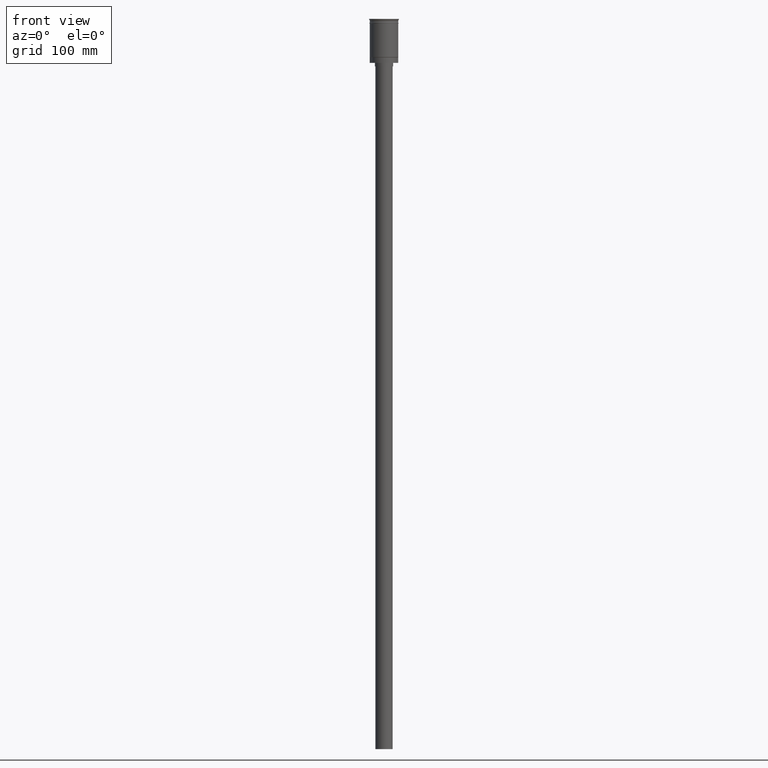
[diagram: clean part render]
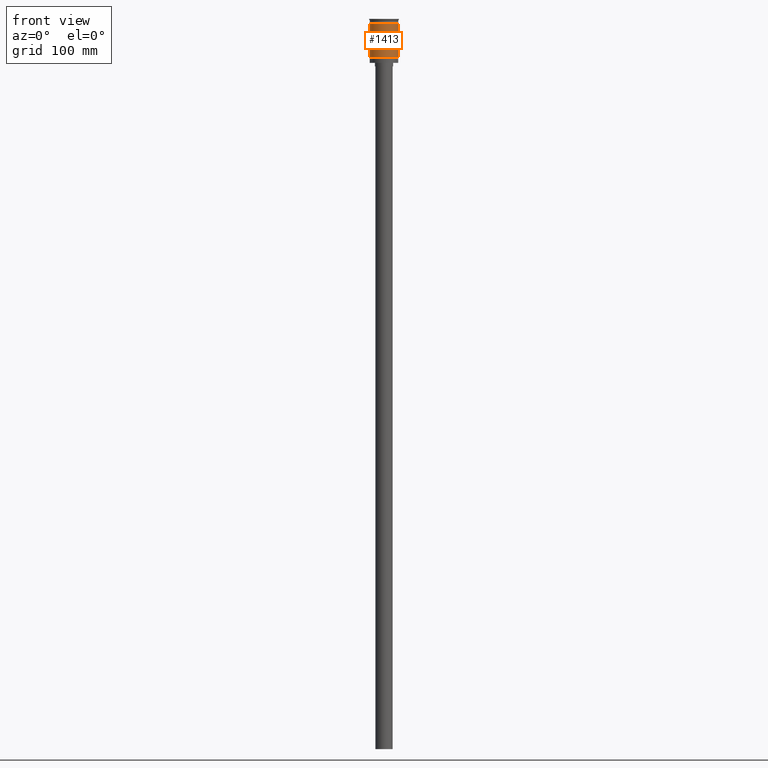
[diagram: same view with one face highlighted and labeled with its STEP entity id]
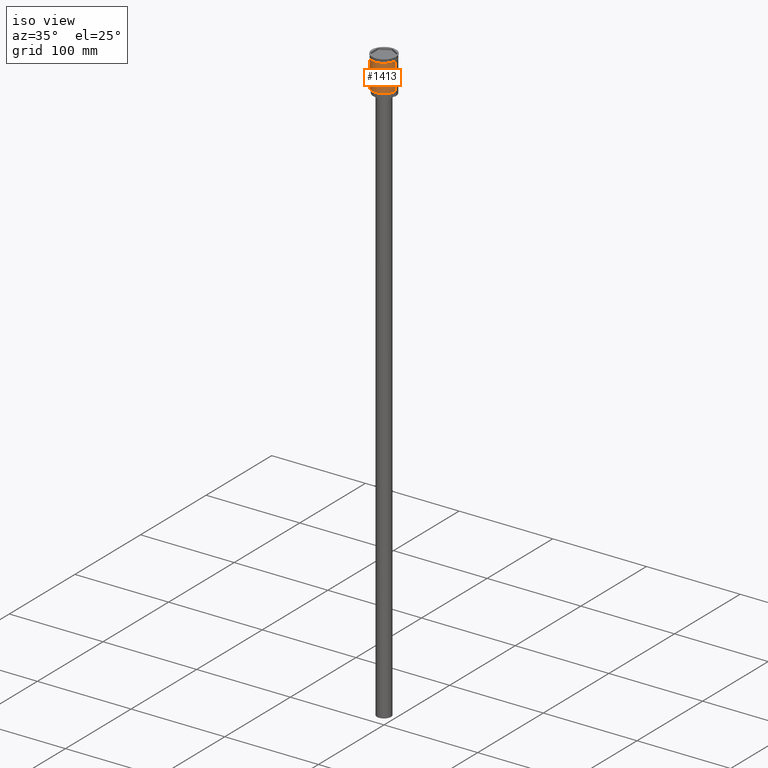
[diagram: same view with one face highlighted and labeled with its STEP entity id]
A machine part, front view. The second image highlights one B-rep face of the part: STEP entity #1413.
A second angle (iso view) of the same face is appended — the face is thin or edge-on in the first view.
In plain terms, the highlighted cylindrical surface (edge-blend (fillet) strip) has radius 12.5 mm, axis along (-0, -0, 1).
Its self-contained STEP definition (entity closure, byte-faithful):
#1 = CIRCLE ( 'NONE', #463, 12.49999999999999645 ) ;
#98 = CARTESIAN_POINT ( 'NONE',  ( 12.49999999999999822, 0.000000000000000000, -3.999999999999996447 ) ) ;
#196 = FACE_OUTER_BOUND ( 'NONE', #1551, .T. ) ;
#317 = CARTESIAN_POINT ( 'NONE',  ( -12.49999999999999289, 0.000000000000000000, -33.30000000000005400 ) ) ;
#351 = DIRECTION ( 'NONE',  ( 1.000000000000000000, 0.000000000000000000, 0.000000000000000000 ) ) ;
#387 = VECTOR ( 'NONE', #1391, 1000.000000000000000 ) ;
#414 = ORIENTED_EDGE ( 'NONE', *, *, #1271, .F. ) ;
#424 = EDGE_CURVE ( 'NONE', #1509, #1234, #1011, .T. ) ;
#462 = DIRECTION ( 'NONE',  ( -1.000000000000000000, 0.000000000000000000, 0.000000000000000000 ) ) ;
#463 = AXIS2_PLACEMENT_3D ( 'NONE', #1424, #820, #462 ) ;
#480 = VECTOR ( 'NONE', #1560, 1000.000000000000000 ) ;
#512 = AXIS2_PLACEMENT_3D ( 'NONE', #547, #640, #1023 ) ;
#547 = CARTESIAN_POINT ( 'NONE',  ( 0.000000000000000000, 0.000000000000000000, 0.000000000000000000 ) ) ;
#555 = LINE ( 'NONE', #1277, #387 ) ;
#640 = DIRECTION ( 'NONE',  ( -0.000000000000000000, -0.000000000000000000, 1.000000000000000000 ) ) ;
#706 = ORIENTED_EDGE ( 'NONE', *, *, #1134, .T. ) ;
#778 = CARTESIAN_POINT ( 'NONE',  ( -12.50000000000000000, 1.530808498934191521E-15, -3.999999999999996447 ) ) ;
#820 = DIRECTION ( 'NONE',  ( -0.000000000000000000, -0.000000000000000000, 1.000000000000000000 ) ) ;
#891 = CARTESIAN_POINT ( 'NONE',  ( 12.49999999999999645, 1.530808498934191127E-15, -33.30000000000005400 ) ) ;
#898 = ORIENTED_EDGE ( 'NONE', *, *, #1582, .T. ) ;
#942 = DIRECTION ( 'NONE',  ( -0.000000000000000000, -0.000000000000000000, 1.000000000000000000 ) ) ;
#1011 = CIRCLE ( 'NONE', #1100, 12.49999999999999822 ) ;
#1023 = DIRECTION ( 'NONE',  ( 1.000000000000000000, 0.000000000000000000, 0.000000000000000000 ) ) ;
#1053 = LINE ( 'NONE', #1442, #480 ) ;
#1100 = AXIS2_PLACEMENT_3D ( 'NONE', #1296, #942, #351 ) ;
#1134 = EDGE_CURVE ( 'NONE', #1144, #1234, #555, .T. ) ;
#1144 = VERTEX_POINT ( 'NONE', #891 ) ;
#1156 = CYLINDRICAL_SURFACE ( 'NONE', #512, 12.49999999999999645 ) ;
#1234 = VERTEX_POINT ( 'NONE', #98 ) ;
#1271 = EDGE_CURVE ( 'NONE', #1412, #1509, #1053, .T. ) ;
#1277 = CARTESIAN_POINT ( 'NONE',  ( 12.49999999999999645, 0.000000000000000000, 0.000000000000000000 ) ) ;
#1296 = CARTESIAN_POINT ( 'NONE',  ( 0.000000000000000000, 0.000000000000000000, -3.999999999999996447 ) ) ;
#1391 = DIRECTION ( 'NONE',  ( -0.000000000000000000, -0.000000000000000000, 1.000000000000000000 ) ) ;
#1412 = VERTEX_POINT ( 'NONE', #317 ) ;
#1413 = ADVANCED_FACE ( 'NONE', ( #196 ), #1156, .T. ) ;
#1424 = CARTESIAN_POINT ( 'NONE',  ( 0.000000000000000000, 0.000000000000000000, -33.30000000000005400 ) ) ;
#1442 = CARTESIAN_POINT ( 'NONE',  ( -12.49999999999999645, 1.530808498934191127E-15, 0.000000000000000000 ) ) ;
#1509 = VERTEX_POINT ( 'NONE', #778 ) ;
#1551 = EDGE_LOOP ( 'NONE', ( #414, #898, #706, #1566 ) ) ;
#1560 = DIRECTION ( 'NONE',  ( -0.000000000000000000, -0.000000000000000000, 1.000000000000000000 ) ) ;
#1566 = ORIENTED_EDGE ( 'NONE', *, *, #424, .F. ) ;
#1582 = EDGE_CURVE ( 'NONE', #1412, #1144, #1, .T. ) ;